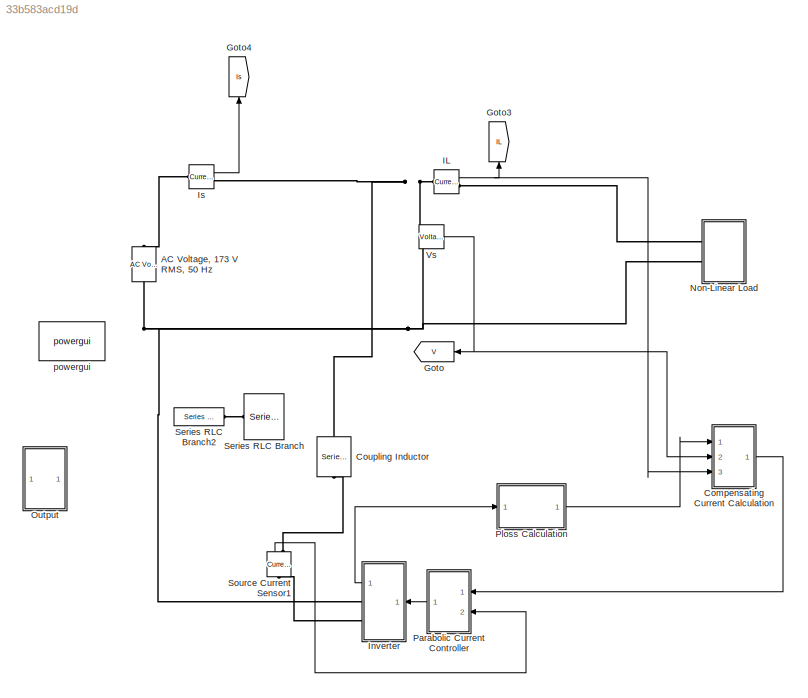
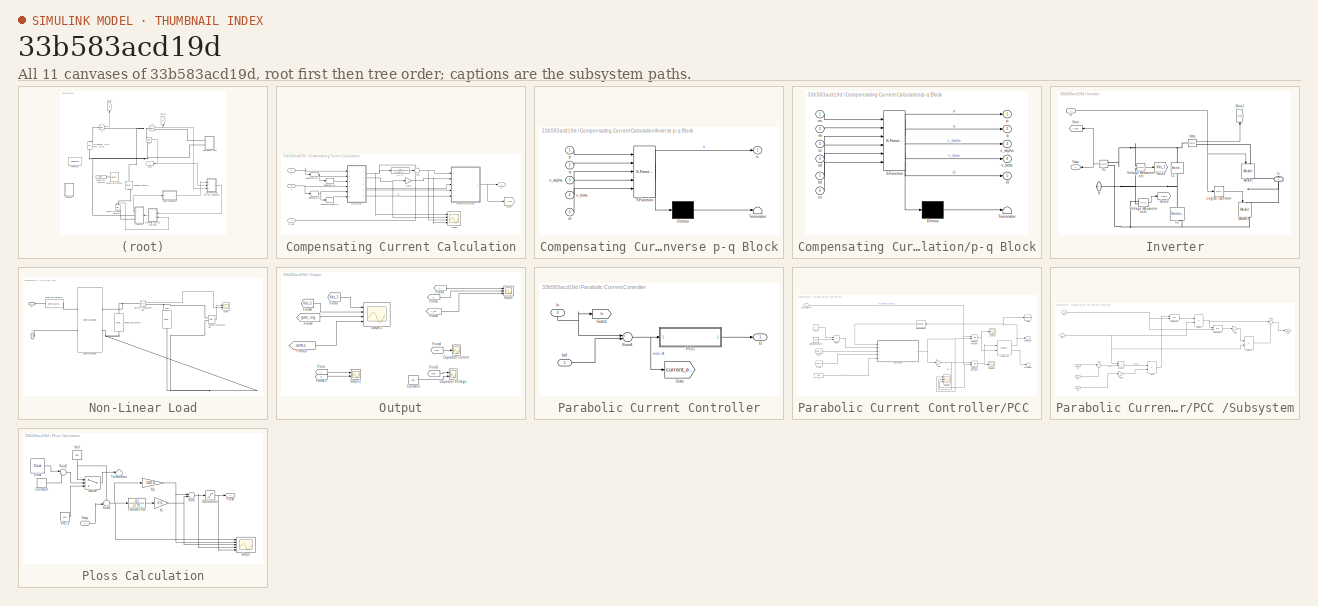
[diagram: thumbnail index - all 11 canvases of the model, root first then tree order]
MODEL slx_33b583acd19d
KIND model
CONFIG AbsTol = auto
CONFIG EnableMultiTasking = on
CONFIG FixedStep = auto
CONFIG MaxStep = auto
CONFIG MinStep = auto
CONFIG RelTol = 1e-3
CONFIG SampleTimeConstraint = Unconstrained
CONFIG Solver = ode45
CONFIG SolverName = ode45
CONFIG StartTime = 0.0
CONFIG StopTime = 7
BLOCK [Reference] AC Voltage, 173 V RMS, 50 Hz  REF=powerlib/Electrical
Sources/AC Voltage Source
  Ports = [0, 0, 0, 0, 0, 1, 1]
  SourceBlock = powerlib/Electrical\nSources/AC Voltage Source
  SourceProductBaseCode = PS
  SourceProductName = Simscape Power Systems
  SourceType = AC Voltage Source
BLOCK [SubSystem] Compensating Current Calculation
  Ports = [3, 1]
  RequestExecContextInheritance = off
  Variant = off
BLOCK [Gain] Compensating Current Calculation/Gain
  Gain = -1
  OutDataTypeStr = Inherit: Inherit via internal rule
  ParamDataTypeStr = Inherit: Inherit via internal rule
  SaturateOnIntegerOverflow = off
BLOCK [Goto] Compensating Current Calculation/Goto
  GotoTag = I_ref
  TagVisibility = global
BLOCK [SubSystem] Compensating Current Calculation/Inverse p-q Block
  ErrorFcn = Stateflow.Translate.translate
  PermitHierarchicalResolution = ExplicitOnly
  Ports = [5, 1]
  RequestExecContextInheritance = off
  SFBlockType = MATLAB Function
  TreatAsAtomicUnit = on
  Variant = off
BLOCK [Demux] Compensating Current Calculation/Inverse p-q Block/ Demux 
  Outputs = 1
  Ports = [1, 1]
BLOCK [S-Function] Compensating Current Calculation/Inverse p-q Block/ SFunction 
  EnableBusSupport = on
  FunctionName = sf_sfun
  PortCounts = [5 2]
  Ports = [5, 2]
  SFcnIsStateOwnerBlock = off
  SFunctionDeploymentMode = off
  Tag = Stateflow S-Function Single_Phase_SAPF_02apr 3
BLOCK [Terminator] Compensating Current Calculation/Inverse p-q Block/ Terminator 
BLOCK [Inport] Compensating Current Calculation/Inverse p-q Block/i0
  IconDisplay = Port number
  Port = 5
BLOCK [Outport] Compensating Current Calculation/Inverse p-q Block/ir
  IconDisplay = Port number
BLOCK [Inport] Compensating Current Calculation/Inverse p-q Block/p
  IconDisplay = Port number
BLOCK [Inport] Compensating Current Calculation/Inverse p-q Block/q
  IconDisplay = Port number
  Port = 2
BLOCK [Inport] Compensating Current Calculation/Inverse p-q Block/v_alpha
  IconDisplay = Port number
  Port = 3
BLOCK [Inport] Compensating Current Calculation/Inverse p-q Block/v_beta
  IconDisplay = Port number
  Port = 4
BLOCK [Outport] Compensating Current Calculation/Ir
  IconDisplay = Port number
BLOCK [TransferFcn] Compensating Current Calculation/L.P.F
  Denominator = [0.0011    0.0187    0.1932    1.0000]
BLOCK [Inport] Compensating Current Calculation/Ploss
  IconDisplay = Port number
BLOCK [Scope] Compensating Current Calculation/Scope
  NumInputPorts = 4
  Ports = [4]
  ScopeSpecificationString = Simulink.scopes.TimeScopeBlockCfg('CurrentConfiguration', extmgr.ConfigurationSet(extmgr.Configuration('Core','General UI',true),extmgr.Configuration('Core','Source UI',true),extmgr.Configuration('Sources','WiredSimulink',true,'DataLoggingVariableName','ScopeData3'),extmgr.Configuration('Visuals','Time Domain',true,'SerializedDisplays',{struct('MinYLimReal','-23441.40163','MaxYLimReal','37885.7590...<+3513ch>
BLOCK [Sum] Compensating Current Calculation/Sum
  IconShape = round
  InputSameDT = off
  Inputs = +-+
  OutDataTypeStr = Inherit: Inherit via internal rule
  Ports = [3, 1]
  SaturateOnIntegerOverflow = off
BLOCK [TransportDelay] Compensating Current Calculation/generate ib
  BufferSize = 10240
  DelayTime = 1/150
  Ports = [1, 1]
BLOCK [TransportDelay] Compensating Current Calculation/generate phase ic
  BufferSize = 10240
  DelayTime = 1/150
  Ports = [1, 1]
BLOCK [TransportDelay] Compensating Current Calculation/generate vb
  BufferSize = 10240
  DelayTime = 1/150
  Ports = [1, 1]
BLOCK [TransportDelay] Compensating Current Calculation/generate vc
  BufferSize = 10240
  DelayTime = 1/150
  Ports = [1, 1]
BLOCK [Inport] Compensating Current Calculation/i
  IconDisplay = Port number
  Port = 3
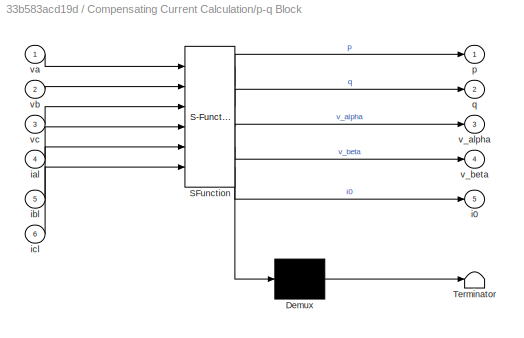
BLOCK [SubSystem] Compensating Current Calculation/p-q Block
  ErrorFcn = Stateflow.Translate.translate
  PermitHierarchicalResolution = ExplicitOnly
  Ports = [6, 5]
  RequestExecContextInheritance = off
  SFBlockType = MATLAB Function
  TreatAsAtomicUnit = on
  Variant = off
BLOCK [Demux] Compensating Current Calculation/p-q Block/ Demux 
  Outputs = 1
  Ports = [1, 1]
BLOCK [S-Function] Compensating Current Calculation/p-q Block/ SFunction 
  EnableBusSupport = on
  FunctionName = sf_sfun
  PortCounts = [6 6]
  Ports = [6, 6]
  SFcnIsStateOwnerBlock = off
  SFunctionDeploymentMode = off
  Tag = Stateflow S-Function Single_Phase_SAPF_02apr 4
BLOCK [Terminator] Compensating Current Calculation/p-q Block/ Terminator 
BLOCK [Outport] Compensating Current Calculation/p-q Block/i0
  IconDisplay = Port number
  Port = 5
BLOCK [Inport] Compensating Current Calculation/p-q Block/ial
  IconDisplay = Port number
  Port = 4
BLOCK [Inport] Compensating Current Calculation/p-q Block/ibl
  IconDisplay = Port number
  Port = 5
BLOCK [Inport] Compensating Current Calculation/p-q Block/icl
  IconDisplay = Port number
  Port = 6
BLOCK [Outport] Compensating Current Calculation/p-q Block/p
  IconDisplay = Port number
BLOCK [Outport] Compensating Current Calculation/p-q Block/q
  IconDisplay = Port number
  Port = 2
BLOCK [Outport] Compensating Current Calculation/p-q Block/v_alpha
  IconDisplay = Port number
  Port = 3
BLOCK [Outport] Compensating Current Calculation/p-q Block/v_beta
  IconDisplay = Port number
  Port = 4
BLOCK [Inport] Compensating Current Calculation/p-q Block/va
  IconDisplay = Port number
BLOCK [Inport] Compensating Current Calculation/p-q Block/vb
  IconDisplay = Port number
  Port = 2
BLOCK [Inport] Compensating Current Calculation/p-q Block/vc
  IconDisplay = Port number
  Port = 3
BLOCK [Inport] Compensating Current Calculation/v
  IconDisplay = Port number
  Port = 2
BLOCK [Reference] Coupling Inductor  REF=powerlib/Elements/Series RLC Branch
  Ports = [0, 0, 0, 0, 0, 1, 1]
  SourceBlock = powerlib/Elements/Series RLC Branch
  SourceProductBaseCode = PS
  SourceProductName = Simscape Power Systems
  SourceType = Series RLC Branch
BLOCK [Goto] Goto
  GotoTag = V
  TagVisibility = global
BLOCK [Goto] Goto3
  GotoTag = IL
  TagVisibility = global
BLOCK [Goto] Goto4
  GotoTag = Is
  TagVisibility = global
BLOCK [Reference] IL  REF=powerlib/Measurements/Current Measurement
  Ports = [0, 1, 0, 0, 0, 1, 1]
  SourceBlock = powerlib/Measurements/Current Measurement
  SourceProductBaseCode = PS
  SourceProductName = Simscape Power Systems
  SourceType = Current Measurement
  UserDataPersistent = on
BLOCK [SubSystem] Inverter
  Ports = [1, 1, 0, 0, 0, 0, 2]
  RequestExecContextInheritance = off
  Variant = off
BLOCK [Reference] Inverter/C1  REF=powerlib/Elements/Series RLC Branch
  Ports = [0, 0, 0, 0, 0, 1, 1]
  SourceBlock = powerlib/Elements/Series RLC Branch
  SourceProductBaseCode = PS
  SourceProductName = Simscape Power Systems
  SourceType = Series RLC Branch
BLOCK [Reference] Inverter/C2  REF=powerlib/Elements/Series RLC Branch
  Ports = [0, 0, 0, 0, 0, 1, 1]
  SourceBlock = powerlib/Elements/Series RLC Branch
  SourceProductBaseCode = PS
  SourceProductName = Simscape Power Systems
  SourceType = Series RLC Branch
BLOCK [Inport] Inverter/G
  IconDisplay = Port number
BLOCK [Goto] Inverter/Goto
  GotoTag = Vcap
  TagVisibility = global
BLOCK [Goto] Inverter/Goto1
  GotoTag = Icap
  TagVisibility = global
BLOCK [Goto] Inverter/Goto2
  GotoTag = Vdc_1
  TagVisibility = global
BLOCK [Goto] Inverter/Goto3
  GotoTag = Vdc_2
  TagVisibility = global
BLOCK [PMIOPort] Inverter/Ic
  Port = 2
  Side = Right
BLOCK [Reference] Inverter/Icap  REF=powerlib/Measurements/Current Measurement
  Ports = [0, 1, 0, 0, 0, 1, 1]
  SourceBlock = powerlib/Measurements/Current Measurement
  SourceProductBaseCode = PS
  SourceProductName = Simscape Power Systems
  SourceType = Current Measurement
  UserDataPersistent = on
BLOCK [Logic] Inverter/Logical Operator
  AllPortsSameDT = off
  Operator = NOT
  OutDataTypeStr = boolean
  Ports = [1, 1]
BLOCK [Reference] Inverter/Mosfet  REF=powerlib/Power
Electronics/Mosfet
  Ports = [1, 0, 0, 0, 0, 1, 1]
  SourceBlock = powerlib/Power\nElectronics/Mosfet
  SourceProductBaseCode = PS
  SourceProductName = Simscape Power Systems
  SourceType = Mosfet
BLOCK [Reference] Inverter/Mosfet1  REF=powerlib/Power
Electronics/Mosfet
  Ports = [1, 0, 0, 0, 0, 1, 1]
  SourceBlock = powerlib/Power\nElectronics/Mosfet
  SourceProductBaseCode = PS
  SourceProductName = Simscape Power Systems
  SourceType = Mosfet
BLOCK [PMIOPort] Inverter/N
  Port = 1
  Side = Right
BLOCK [Reference] Inverter/Vc  REF=powerlib/Measurements/Voltage Measurement
  Ports = [0, 1, 0, 0, 0, 2]
  SourceBlock = powerlib/Measurements/Voltage Measurement
  SourceProductBaseCode = PS
  SourceProductName = Simscape Power Systems
  SourceType = Voltage Measurement
  UserDataPersistent = on
BLOCK [Outport] Inverter/Vcap
  IconDisplay = Port number
BLOCK [Reference] Inverter/Voltage Measurement  REF=powerlib/Measurements/Voltage Measurement
  Ports = [0, 1, 0, 0, 0, 2]
  SourceBlock = powerlib/Measurements/Voltage Measurement
  SourceProductBaseCode = PS
  SourceProductName = Simscape Power Systems
  SourceType = Voltage Measurement
  UserDataPersistent = on
BLOCK [Reference] Inverter/Voltage Measurement1  REF=powerlib/Measurements/Voltage Measurement
  Ports = [0, 1, 0, 0, 0, 2]
  SourceBlock = powerlib/Measurements/Voltage Measurement
  SourceProductBaseCode = PS
  SourceProductName = Simscape Power Systems
  SourceType = Voltage Measurement
  UserDataPersistent = on
BLOCK [Reference] Is  REF=powerlib/Measurements/Current Measurement
  Ports = [0, 1, 0, 0, 0, 1, 1]
  SourceBlock = powerlib/Measurements/Current Measurement
  SourceProductBaseCode = PS
  SourceProductName = Simscape Power Systems
  SourceType = Current Measurement
  UserDataPersistent = on
BLOCK [SubSystem] Non-Linear Load
  Ports = [0, 0, 0, 0, 0, 2]
  RequestExecContextInheritance = off
  Variant = off
BLOCK [Reference] Non-Linear Load/ load  REF=powerlib/Elements/Series RLC Branch
  Ports = [0, 0, 0, 0, 0, 1, 1]
  SourceBlock = powerlib/Elements/Series RLC Branch
  SourceProductBaseCode = PS
  SourceProductName = Simscape Power Systems
  SourceType = Series RLC Branch
BLOCK [Reference] Non-Linear Load/Current Measurement  REF=powerlib/Measurements/Current Measurement
  Ports = [0, 1, 0, 0, 0, 1, 1]
  SourceBlock = powerlib/Measurements/Current Measurement
  SourceProductBaseCode = PS
  SourceProductName = Simscape Power Systems
  SourceType = Current Measurement
  UserDataPersistent = on
BLOCK [PMIOPort] Non-Linear Load/N
  Port = 2
  Side = Left
BLOCK [PMIOPort] Non-Linear Load/P
  Port = 1
  Side = Left
BLOCK [Scope] Non-Linear Load/Scope
  NumInputPorts = 2
  Ports = [2]
  ScopeSpecificationString = Simulink.scopes.TimeScopeBlockCfg('CurrentConfiguration', extmgr.ConfigurationSet(extmgr.Configuration('Core','General UI',true),extmgr.Configuration('Core','Source UI',true),extmgr.Configuration('Sources','WiredSimulink',true,'DataLoggingVariableName','ScopeData1'),extmgr.Configuration('Visuals','Time Domain',true,'SerializedDisplays',{struct('MinYLimReal','225.69846','MaxYLimReal','252.70017','Y...<+2098ch>
BLOCK [Reference] Non-Linear Load/Series RLC Branch  REF=powerlib/Elements/Series RLC Branch
  Ports = [0, 0, 0, 0, 0, 1, 1]
  SourceBlock = powerlib/Elements/Series RLC Branch
  SourceProductBaseCode = PS
  SourceProductName = Simscape Power Systems
  SourceType = Series RLC Branch
BLOCK [Reference] Non-Linear Load/Series RLC Branch1  REF=powerlib/Elements/Series RLC Branch
  Ports = [0, 0, 0, 0, 0, 1, 1]
  SourceBlock = powerlib/Elements/Series RLC Branch
  SourceProductBaseCode = PS
  SourceProductName = Simscape Power Systems
  SourceType = Series RLC Branch
BLOCK [Reference] Non-Linear Load/Universal Bridge  REF=powerlib/Power
Electronics/Universal Bridge
  Ports = [0, 0, 0, 0, 0, 2, 2]
  SourceBlock = powerlib/Power\nElectronics/Universal Bridge
  SourceProductBaseCode = PS
  SourceProductName = Simscape Power Systems
  SourceType = Universal Bridge
BLOCK [Reference] Non-Linear Load/Voltage Measurement  REF=powerlib/Measurements/Voltage Measurement
  Ports = [0, 1, 0, 0, 0, 2]
  SourceBlock = powerlib/Measurements/Voltage Measurement
  SourceProductBaseCode = PS
  SourceProductName = Simscape Power Systems
  SourceType = Voltage Measurement
  UserDataPersistent = on
BLOCK [SubSystem] Output
  Ports = []
  RequestExecContextInheritance = off
  Variant = off
BLOCK [Scope] Output/Capacitor Current
  NumInputPorts = 1
  Ports = [1]
  ScopeSpecificationString = Simulink.scopes.TimeScopeBlockCfg('CurrentConfiguration', extmgr.ConfigurationSet(extmgr.Configuration('Core','General UI',true),extmgr.Configuration('Core','Source UI',true),extmgr.Configuration('Sources','WiredSimulink',true,'DataLoggingVariableName','ScopeData2','DataLoggingMaxPoints','50000'),extmgr.Configuration('Visuals','Time Domain',true,'SerializedDisplays',{struct('MinYLimReal','-259.567...<+1553ch>
BLOCK [Scope] Output/Capacitor Voltage
  NumInputPorts = 2
  Ports = [2]
  ScopeSpecificationString = Simulink.scopes.TimeScopeBlockCfg('CurrentConfiguration', extmgr.ConfigurationSet(extmgr.Configuration('Core','General UI',true,'DisplayFullSourceName',true),extmgr.Configuration('Core','Source UI',true),extmgr.Configuration('Sources','WiredSimulink',true,'DataLoggingVariableName','ScopeData1','DataLoggingMaxPoints','50000'),extmgr.Configuration('Visuals','Time Domain',true,'SerializedDisplays',{s...<+1591ch>
BLOCK [Constant] Output/Constant
  Value = 800
BLOCK [From] Output/From
  GotoTag = V
  TagVisibility = global
BLOCK [From] Output/From1
  GotoTag = IL
  TagVisibility = global
BLOCK [From] Output/From10
  GotoTag = current_error
  TagVisibility = global
BLOCK [From] Output/From11
  GotoTag = Is
  TagVisibility = global
BLOCK [From] Output/From3
  GotoTag = Vcap
  TagVisibility = global
BLOCK [From] Output/From4
  GotoTag = Icap
  TagVisibility = global
BLOCK [From] Output/From5
  GotoTag = Ic
  TagVisibility = global
BLOCK [From] Output/From6
  GotoTag = I_ref
  TagVisibility = global
BLOCK [From] Output/From7
  GotoTag = Vdc_1
  TagVisibility = global
BLOCK [From] Output/From8
  GotoTag = Vdc_2
  TagVisibility = global
BLOCK [From] Output/From9
  GotoTag = gate_sig
  TagVisibility = global
BLOCK [Scope] Output/Scope
  NumInputPorts = 3
  Ports = [3]
  ScopeSpecificationString = Simulink.scopes.TimeScopeBlockCfg('CurrentConfiguration', extmgr.ConfigurationSet(extmgr.Configuration('Core','General UI',true),extmgr.Configuration('Core','Source UI',true),extmgr.Configuration('Sources','WiredSimulink',true,'DataLoggingVariableName','ScopeData1'),extmgr.Configuration('Visuals','Time Domain',true,'SerializedDisplays',{struct('MinYLimReal','-15.12686','MaxYLimReal','15.12686','YL...<+2740ch>
BLOCK [Scope] Output/Scope1
  NumInputPorts = 4
  Ports = [4]
  ScopeSpecificationString = Simulink.scopes.TimeScopeBlockCfg('CurrentConfiguration', extmgr.ConfigurationSet(extmgr.Configuration('Core','General UI',true),extmgr.Configuration('Core','Source UI',true),extmgr.Configuration('Sources','WiredSimulink',true,'DataLoggingVariableName','ScopeData1'),extmgr.Configuration('Visuals','Time Domain',true,'SerializedDisplays',{struct('MinYLimReal','258.18304','MaxYLimReal','433.59973','Y...<+3533ch>
BLOCK [Scope] Output/Scope2
  NumInputPorts = 2
  Ports = [2]
  ScopeSpecificationString = Simulink.scopes.TimeScopeBlockCfg('CurrentConfiguration', extmgr.ConfigurationSet(extmgr.Configuration('Core','General UI',true,'DisplayFullSourceName',true),extmgr.Configuration('Core','Source UI',true),extmgr.Configuration('Sources','WiredSimulink',true,'DataLoggingVariableName','ScopeData_PCC','DataLogging',true,'DataLoggingSaveFormat','StructureWithTime'),extmgr.Configuration('Visuals','Time D...<+2144ch>
BLOCK [SubSystem] Parabolic Current Controller
  Ports = [2, 1]
  RequestExecContextInheritance = off
  Variant = off
BLOCK [Outport] Parabolic Current Controller/G
  IconDisplay = Port number
BLOCK [Goto] Parabolic Current Controller/Goto
  GotoTag = current_error
  TagVisibility = global
BLOCK [Goto] Parabolic Current Controller/Goto1
  GotoTag = Ic
  TagVisibility = global
BLOCK [Inport] Parabolic Current Controller/Ic
  IconDisplay = Port number
  Port = 2
BLOCK [Inport] Parabolic Current Controller/Iref
  IconDisplay = Port number
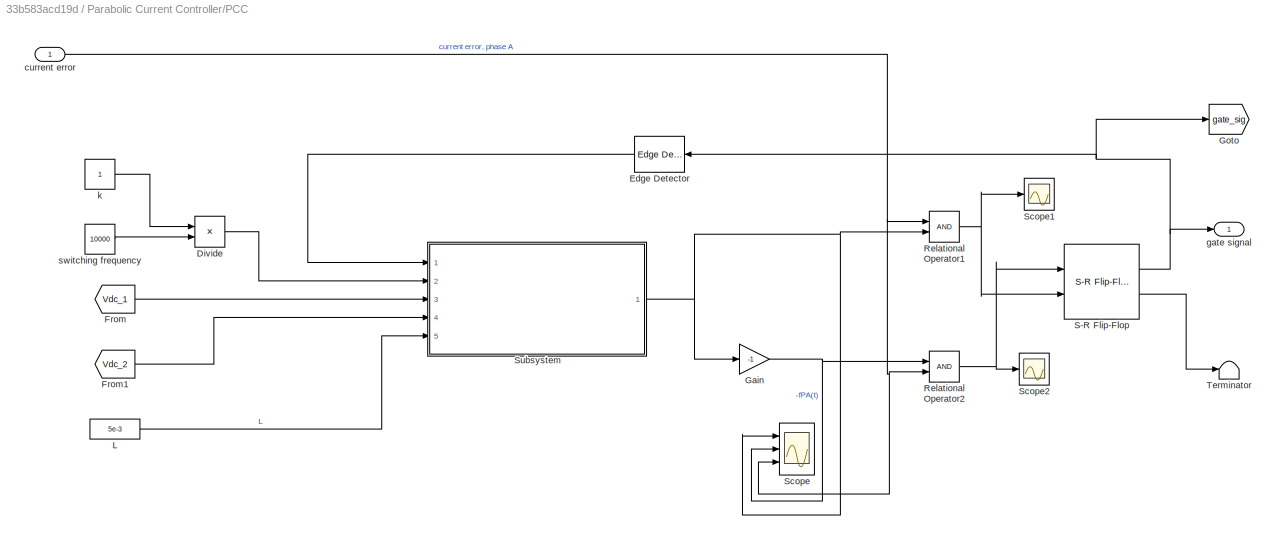
BLOCK [SubSystem] Parabolic Current Controller/PCC 
  Ports = [1, 1]
  RequestExecContextInheritance = off
  Variant = off
BLOCK [Product] Parabolic Current Controller/PCC /Divide
  InputSameDT = off
  Inputs = */
  OutDataTypeStr = Inherit: Inherit via internal rule
  Ports = [2, 1]
  RndMeth = Floor
  SaturateOnIntegerOverflow = off
BLOCK [Reference] Parabolic Current Controller/PCC /Edge Detector  REF=powerlib_meascontrol/Logic/Edge Detector
  Ports = [1, 1]
  SourceBlock = powerlib_meascontrol/Logic/Edge Detector
  SourceProductBaseCode = PS
  SourceProductName = Simscape Power Systems
  SourceType = Edge Detector
BLOCK [From] Parabolic Current Controller/PCC /From
  GotoTag = Vdc_1
  TagVisibility = global
BLOCK [From] Parabolic Current Controller/PCC /From1
  GotoTag = Vdc_2
  TagVisibility = global
BLOCK [Gain] Parabolic Current Controller/PCC /Gain
  Gain = -1
  OutDataTypeStr = Inherit: Inherit via internal rule
  ParamDataTypeStr = Inherit: Inherit via internal rule
  SaturateOnIntegerOverflow = off
BLOCK [Goto] Parabolic Current Controller/PCC /Goto
  GotoTag = gate_sig
  TagVisibility = global
BLOCK [Constant] Parabolic Current Controller/PCC /L
  Value = 5e-3
BLOCK [RelationalOperator] Parabolic Current Controller/PCC /Relational Operator1
  InputSameDT = off
  OutDataTypeStr = boolean
  Ports = [2, 1]
  RndMeth = Simplest
  ZeroCross = off
BLOCK [RelationalOperator] Parabolic Current Controller/PCC /Relational Operator2
  InputSameDT = off
  OutDataTypeStr = boolean
  Ports = [2, 1]
  RndMeth = Simplest
  ZeroCross = off
BLOCK [Reference] Parabolic Current Controller/PCC /S-R Flip-Flop  REF=simulink_extras/Flip Flops/S-R
Flip-Flop
  Ports = [2, 2]
  SourceBlock = simulink_extras/Flip Flops/S-R\nFlip-Flop
  SourceProductBaseCode = SL
  SourceProductName = Simulink
  SourceType = SRFlipFlop
BLOCK [Scope] Parabolic Current Controller/PCC /Scope
  NumInputPorts = 3
  Ports = [3]
  ScopeSpecificationString = Simulink.scopes.TimeScopeBlockCfg('CurrentConfiguration', extmgr.ConfigurationSet(extmgr.Configuration('Core','General UI',true),extmgr.Configuration('Core','Source UI',true),extmgr.Configuration('Sources','WiredSimulink',true,'DataLoggingVariableName','ScopeData2'),extmgr.Configuration('Visuals','Time Domain',true,'SerializedDisplays',{struct('MinYLimReal','-2266484476.35167','MaxYLimReal','22664...<+1661ch>
BLOCK [Scope] Parabolic Current Controller/PCC /Scope1
  NumInputPorts = 1
  Ports = [1]
  ScopeSpecificationString = Simulink.scopes.TimeScopeBlockCfg('CurrentConfiguration', extmgr.ConfigurationSet(extmgr.Configuration('Core','General UI',true),extmgr.Configuration('Core','Source UI',true),extmgr.Configuration('Sources','WiredSimulink',true,'DataLoggingVariableName','ScopeData2'),extmgr.Configuration('Visuals','Time Domain',true,'SerializedDisplays',{struct('MinYLimReal','-0.125','MaxYLimReal','1.125','YLabelRe...<+1367ch>
BLOCK [Scope] Parabolic Current Controller/PCC /Scope2
  NumInputPorts = 1
  Ports = [1]
  ScopeSpecificationString = Simulink.scopes.TimeScopeBlockCfg('CurrentConfiguration', extmgr.ConfigurationSet(extmgr.Configuration('Core','General UI',true),extmgr.Configuration('Core','Source UI',true),extmgr.Configuration('Sources','WiredSimulink',true,'DataLoggingVariableName','ScopeData3'),extmgr.Configuration('Visuals','Time Domain',true,'SerializedDisplays',{struct('MinYLimReal','-0.125','MaxYLimReal','1.125','YLabelRe...<+1367ch>
BLOCK [SubSystem] Parabolic Current Controller/PCC /Subsystem
  Ports = [5, 1]
  RequestExecContextInheritance = off
  Variant = off
BLOCK [Product] Parabolic Current Controller/PCC /Subsystem/Divide
  InputSameDT = off
  Inputs = */
  OutDataTypeStr = Inherit: Inherit via internal rule
  Ports = [2, 1]
  RndMeth = Floor
  SaturateOnIntegerOverflow = off
BLOCK [Product] Parabolic Current Controller/PCC /Subsystem/Divide2
  InputSameDT = off
  Inputs = */
  OutDataTypeStr = Inherit: Inherit via internal rule
  Ports = [2, 1]
  RndMeth = Floor
  SaturateOnIntegerOverflow = off
BLOCK [Product] Parabolic Current Controller/PCC /Subsystem/Divide3
  InputSameDT = off
  Inputs = */
  OutDataTypeStr = Inherit: Inherit via internal rule
  Ports = [2, 1]
  RndMeth = Floor
  SaturateOnIntegerOverflow = off
BLOCK [Gain] Parabolic Current Controller/PCC /Subsystem/Gain
  Gain = 2
  OutDataTypeStr = Inherit: Inherit via internal rule
  ParamDataTypeStr = Inherit: Inherit via internal rule
  SaturateOnIntegerOverflow = off
BLOCK [Gain] Parabolic Current Controller/PCC /Subsystem/Gain1
  Gain = 2
  OutDataTypeStr = Inherit: Inherit via internal rule
  ParamDataTypeStr = Inherit: Inherit via internal rule
  SaturateOnIntegerOverflow = off
BLOCK [Inport] Parabolic Current Controller/PCC /Subsystem/In1
  IconDisplay = Port number
BLOCK [Inport] Parabolic Current Controller/PCC /Subsystem/In2
  IconDisplay = Port number
  Port = 2
BLOCK [Inport] Parabolic Current Controller/PCC /Subsystem/In3
  IconDisplay = Port number
  Port = 3
BLOCK [Inport] Parabolic Current Controller/PCC /Subsystem/In4
  IconDisplay = Port number
  Port = 4
BLOCK [Inport] Parabolic Current Controller/PCC /Subsystem/In5
  IconDisplay = Port number
  Port = 5
BLOCK [Integrator] Parabolic Current Controller/PCC /Subsystem/Integrator
  ExternalReset = either
  Ports = [2, 1]
BLOCK [Integrator] Parabolic Current Controller/PCC /Subsystem/Integrator1
  ExternalReset = either
  Ports = [2, 1]
BLOCK [Outport] Parabolic Current Controller/PCC /Subsystem/Out1
  IconDisplay = Port number
BLOCK [Product] Parabolic Current Controller/PCC /Subsystem/Product
  InputSameDT = off
  OutDataTypeStr = Inherit: Inherit via internal rule
  Ports = [2, 1]
  RndMeth = Floor
  SaturateOnIntegerOverflow = off
BLOCK [Sum] Parabolic Current Controller/PCC /Subsystem/Sum
  IconShape = round
  InputSameDT = off
  Inputs = |+-
  OutDataTypeStr = Inherit: Inherit via internal rule
  Ports = [2, 1]
  SaturateOnIntegerOverflow = off
BLOCK [Sum] Parabolic Current Controller/PCC /Subsystem/Sum1
  IconShape = round
  InputSameDT = off
  Inputs = |+-
  OutDataTypeStr = Inherit: Inherit via internal rule
  Ports = [2, 1]
  SaturateOnIntegerOverflow = off
BLOCK [Terminator] Parabolic Current Controller/PCC /Terminator
BLOCK [Inport] Parabolic Current Controller/PCC /current error
  IconDisplay = Port number
BLOCK [Outport] Parabolic Current Controller/PCC /gate signal
  IconDisplay = Port number
BLOCK [Constant] Parabolic Current Controller/PCC /k 
BLOCK [Constant] Parabolic Current Controller/PCC /switching frequency
  Value = 10000
BLOCK [Sum] Parabolic Current Controller/Sum4
  InputSameDT = off
  Inputs = +-
  OutDataTypeStr = Inherit: Inherit via internal rule
  Ports = [2, 1]
  SaturateOnIntegerOverflow = off
BLOCK [SubSystem] Ploss Calculation
  Ports = [1, 1]
  RequestExecContextInheritance = off
  Variant = off
BLOCK [Clock] Ploss Calculation/Clock
  DisplayTime = on
BLOCK [Constant] Ploss Calculation/Constant
BLOCK [Gain] Ploss Calculation/Ki 
  Gain = 0.6
  OutDataTypeStr = Inherit: Inherit via internal rule
  ParamDataTypeStr = Inherit: Inherit via internal rule
  SaturateOnIntegerOverflow = off
BLOCK [Gain] Ploss Calculation/Kp 
  Gain = 102.8
  OutDataTypeStr = Inherit: Inherit via internal rule
  ParamDataTypeStr = Inherit: Inherit via internal rule
  SaturateOnIntegerOverflow = off
BLOCK [Outport] Ploss Calculation/Ploss
  IconDisplay = Port number
BLOCK [Saturate] Ploss Calculation/Saturation
  InputPortMap = u0
  LinearizeAsGain = off
  LowerLimit = -1e-5
  Ports = [1, 1]
  UpperLimit = 1e5
  ZeroCross = off
BLOCK [Scope] Ploss Calculation/Scope
  NumInputPorts = 5
  Ports = [5]
  ScopeSpecificationString = Simulink.scopes.TimeScopeBlockCfg('CurrentConfiguration', extmgr.ConfigurationSet(extmgr.Configuration('Core','General UI',true),extmgr.Configuration('Core','Source UI',true),extmgr.Configuration('Sources','WiredSimulink',true,'DataLoggingVariableName','ScopeData2'),extmgr.Configuration('Visuals','Time Domain',true,'SerializedDisplays',{struct('MinYLimReal','-279.59129','MaxYLimReal','918.01199','...<+4811ch>
BLOCK [Sum] Ploss Calculation/Sum
  IconShape = round
  InputSameDT = off
  Inputs = |++
  OutDataTypeStr = Inherit: Inherit via internal rule
  Ports = [2, 1]
  SaturateOnIntegerOverflow = off
BLOCK [Sum] Ploss Calculation/Sum1
  IconShape = round
  InputSameDT = off
  Inputs = +-|
  OutDataTypeStr = Inherit: Inherit via internal rule
  Ports = [2, 1]
  SaturateOnIntegerOverflow = off
BLOCK [Sum] Ploss Calculation/Sum2
  IconShape = round
  InputSameDT = off
  Inputs = |+-
  OutDataTypeStr = Inherit: Inherit via internal rule
  Ports = [2, 1]
  SaturateOnIntegerOverflow = off
BLOCK [Switch] Ploss Calculation/Switch
  Criteria = u2 > Threshold
  InputSameDT = off
  SaturateOnIntegerOverflow = off
BLOCK [Terminator] Ploss Calculation/Terminator
BLOCK [TransferFcn] Ploss Calculation/Transfer Fcn
  Denominator = [1 0]
BLOCK [Inport] Ploss Calculation/Vcap
  IconDisplay = Port number
BLOCK [Constant] Ploss Calculation/Vref
  Value = 800
BLOCK [Constant] Ploss Calculation/Vref,2
  Value = 500
BLOCK [Reference] Series RLC Branch  REF=powerlib/Elements/Series RLC Branch
  Ports = [0, 0, 0, 0, 0, 1, 1]
  SourceBlock = powerlib/Elements/Series RLC Branch
  SourceProductBaseCode = PS
  SourceProductName = Simscape Power Systems
  SourceType = Series RLC Branch
BLOCK [Reference] Series RLC Branch2  REF=powerlib/Elements/Series RLC Branch
  Ports = [0, 0, 0, 0, 0, 1, 1]
  SourceBlock = powerlib/Elements/Series RLC Branch
  SourceProductBaseCode = PS
  SourceProductName = Simscape Power Systems
  SourceType = Series RLC Branch
BLOCK [Reference] Source Current Sensor1  REF=powerlib/Measurements/Current Measurement
  Ports = [0, 1, 0, 0, 0, 1, 1]
  SourceBlock = powerlib/Measurements/Current Measurement
  SourceProductBaseCode = PS
  SourceProductName = Simscape Power Systems
  SourceType = Current Measurement
  UserDataPersistent = on
BLOCK [Reference] Vs  REF=powerlib/Measurements/Voltage Measurement
  Ports = [0, 1, 0, 0, 0, 2]
  SourceBlock = powerlib/Measurements/Voltage Measurement
  SourceProductBaseCode = PS
  SourceProductName = Simscape Power Systems
  SourceType = Voltage Measurement
  UserDataPersistent = on
BLOCK [Reference] powergui  REF=powerlib/powergui
  Ports = []
  Priority = 1
  SourceBlock = powerlib/powergui
  SourceProductBaseCode = PS
  SourceProductName = Simscape Power Systems
  SourceType = PSB option menu block
NET Compensating Current Calculation/Gain:1 -> Compensating Current Calculation/Inverse p-q Block:2, Compensating Current Calculation/Scope:4
NET Compensating Current Calculation/Inverse p-q Block:1 -> Compensating Current Calculation/Goto:1, Compensating Current Calculation/Ir:1
LINE Compensating Current Calculation/L.P.F:1 -> Compensating Current Calculation/Sum:2
LINE Compensating Current Calculation/Ploss:1 -> Compensating Current Calculation/Sum:3
NET Compensating Current Calculation/Sum:1 -> Compensating Current Calculation/Inverse p-q Block:1, Compensating Current Calculation/Scope:3
NET Compensating Current Calculation/generate ib:1 -> Compensating Current Calculation/generate phase ic:1, Compensating Current Calculation/p-q Block:5
LINE Compensating Current Calculation/generate phase ic:1 -> Compensating Current Calculation/p-q Block:6
NET Compensating Current Calculation/generate vb:1 -> Compensating Current Calculation/generate vc:1, Compensating Current Calculation/p-q Block:2
LINE Compensating Current Calculation/generate vc:1 -> Compensating Current Calculation/p-q Block:3
NET Compensating Current Calculation/i:1 -> Compensating Current Calculation/generate ib:1, Compensating Current Calculation/p-q Block:4
NET Compensating Current Calculation/p-q Block:1 -> Compensating Current Calculation/L.P.F:1, Compensating Current Calculation/Scope:1, Compensating Current Calculation/Sum:1
NET Compensating Current Calculation/p-q Block:2 -> Compensating Current Calculation/Gain:1, Compensating Current Calculation/Scope:2
LINE Compensating Current Calculation/p-q Block:3 -> Compensating Current Calculation/Inverse p-q Block:3
LINE Compensating Current Calculation/p-q Block:4 -> Compensating Current Calculation/Inverse p-q Block:4
LINE Compensating Current Calculation/p-q Block:5 -> Compensating Current Calculation/Inverse p-q Block:5
NET Compensating Current Calculation/v:1 -> Compensating Current Calculation/generate vb:1, Compensating Current Calculation/p-q Block:1
LINE Compensating Current Calculation:1 -> Parabolic Current Controller:1
NET IL:1 -> Compensating Current Calculation:3, Goto3:1
NET Inverter/G:1 -> Inverter/Logical Operator:1, Inverter/Mosfet:1
LINE Inverter/Icap:1 -> Inverter/Goto1:1
LINE Inverter/Logical Operator:1 -> Inverter/Mosfet1:1
NET Inverter/Vc:1 -> Inverter/Goto:1, Inverter/Vcap:1
LINE Inverter/Voltage Measurement1:1 -> Inverter/Goto3:1
LINE Inverter/Voltage Measurement:1 -> Inverter/Goto2:1
LINE Inverter:1 -> Ploss Calculation:1
LINE Is:1 -> Goto4:1
LINE Non-Linear Load/Current Measurement:1 -> Non-Linear Load/Scope:2
LINE Non-Linear Load/Voltage Measurement:1 -> Non-Linear Load/Scope:1
LINE Output/Constant:1 -> Output/Capacitor Voltage:2
LINE Output/From10:1 -> Output/Scope1:4
LINE Output/From11:1 -> Output/Scope2:2
LINE Output/From1:1 -> Output/Scope:1
LINE Output/From3:1 -> Output/Capacitor Voltage:1
LINE Output/From4:1 -> Output/Capacitor Current:1
LINE Output/From5:1 -> Output/Scope:2
LINE Output/From6:1 -> Output/Scope:3
LINE Output/From7:1 -> Output/Scope1:1
LINE Output/From8:1 -> Output/Scope1:2
LINE Output/From9:1 -> Output/Scope1:3
LINE Output/From:1 -> Output/Scope2:1
NET Parabolic Current Controller/Ic:1 -> Parabolic Current Controller/Goto1:1, Parabolic Current Controller/Sum4:1
LINE Parabolic Current Controller/Iref:1 -> Parabolic Current Controller/Sum4:2
LINE Parabolic Current Controller/PCC /Divide:1 -> Parabolic Current Controller/PCC /Subsystem:2
LINE Parabolic Current Controller/PCC /Edge Detector:1 -> Parabolic Current Controller/PCC /Subsystem:1
LINE Parabolic Current Controller/PCC /From1:1 -> Parabolic Current Controller/PCC /Subsystem:4
LINE Parabolic Current Controller/PCC /From:1 -> Parabolic Current Controller/PCC /Subsystem:3
NET Parabolic Current Controller/PCC /Gain:1 -> Parabolic Current Controller/PCC /Relational Operator2:1, Parabolic Current Controller/PCC /Scope:2
LINE Parabolic Current Controller/PCC /L:1 -> Parabolic Current Controller/PCC /Subsystem:5
NET Parabolic Current Controller/PCC /Relational Operator1:1 -> Parabolic Current Controller/PCC /S-R Flip-Flop:2, Parabolic Current Controller/PCC /Scope1:1
NET Parabolic Current Controller/PCC /Relational Operator2:1 -> Parabolic Current Controller/PCC /S-R Flip-Flop:1, Parabolic Current Controller/PCC /Scope2:1
NET Parabolic Current Controller/PCC /S-R Flip-Flop:1 -> Parabolic Current Controller/PCC /Edge Detector:1, Parabolic Current Controller/PCC /Goto:1, Parabolic Current Controller/PCC /gate signal:1
LINE Parabolic Current Controller/PCC /S-R Flip-Flop:2 -> Parabolic Current Controller/PCC /Terminator:1
NET Parabolic Current Controller/PCC /Subsystem/Divide2:1 -> Parabolic Current Controller/PCC /Subsystem/Integrator1:1, Parabolic Current Controller/PCC /Subsystem/Sum1:1
LINE Parabolic Current Controller/PCC /Subsystem/Divide3:1 -> Parabolic Current Controller/PCC /Subsystem/Sum1:2
LINE Parabolic Current Controller/PCC /Subsystem/Divide:1 -> Parabolic Current Controller/PCC /Subsystem/Integrator:1
LINE Parabolic Current Controller/PCC /Subsystem/Gain1:1 -> Parabolic Current Controller/PCC /Subsystem/Divide:2
LINE Parabolic Current Controller/PCC /Subsystem/Gain:1 -> Parabolic Current Controller/PCC /Subsystem/Divide3:1
NET Parabolic Current Controller/PCC /Subsystem/In1:1 -> Parabolic Current Controller/PCC /Subsystem/Integrator1:2, Parabolic Current Controller/PCC /Subsystem/Integrator:2
NET Parabolic Current Controller/PCC /Subsystem/In2:1 -> Parabolic Current Controller/PCC /Subsystem/Divide2:2, Parabolic Current Controller/PCC /Subsystem/Divide3:2, Parabolic Current Controller/PCC /Subsystem/Product:1
LINE Parabolic Current Controller/PCC /Subsystem/In3:1 -> Parabolic Current Controller/PCC /Subsystem/Sum:1
LINE Parabolic Current Controller/PCC /Subsystem/In4:1 -> Parabolic Current Controller/PCC /Subsystem/Sum:2
LINE Parabolic Current Controller/PCC /Subsystem/In5:1 -> Parabolic Current Controller/PCC /Subsystem/Gain1:1
LINE Parabolic Current Controller/PCC /Subsystem/Integrator1:1 -> Parabolic Current Controller/PCC /Subsystem/Gain:1
LINE Parabolic Current Controller/PCC /Subsystem/Integrator:1 -> Parabolic Current Controller/PCC /Subsystem/Divide2:1
LINE Parabolic Current Controller/PCC /Subsystem/Product:1 -> Parabolic Current Controller/PCC /Subsystem/Divide:1
LINE Parabolic Current Controller/PCC /Subsystem/Sum1:1 -> Parabolic Current Controller/PCC /Subsystem/Out1:1
LINE Parabolic Current Controller/PCC /Subsystem/Sum:1 -> Parabolic Current Controller/PCC /Subsystem/Product:2
NET Parabolic Current Controller/PCC /Subsystem:1 -> Parabolic Current Controller/PCC /Gain:1, Parabolic Current Controller/PCC /Relational Operator1:2, Parabolic Current Controller/PCC /Scope:1
NET Parabolic Current Controller/PCC /current error:1 -> Parabolic Current Controller/PCC /Relational Operator1:1, Parabolic Current Controller/PCC /Relational Operator2:2, Parabolic Current Controller/PCC /Scope:3
LINE Parabolic Current Controller/PCC /k :1 -> Parabolic Current Controller/PCC /Divide:1
LINE Parabolic Current Controller/PCC /switching frequency:1 -> Parabolic Current Controller/PCC /Divide:2
LINE Parabolic Current Controller/PCC :1 -> Parabolic Current Controller/G:1
NET Parabolic Current Controller/Sum4:1 -> Parabolic Current Controller/Goto:1, Parabolic Current Controller/PCC :1
LINE Parabolic Current Controller:1 -> Inverter:1
LINE Ploss Calculation/Clock:1 -> Ploss Calculation/Sum2:1
LINE Ploss Calculation/Constant:1 -> Ploss Calculation/Sum2:2
NET Ploss Calculation/Ki :1 -> Ploss Calculation/Scope:3, Ploss Calculation/Sum:2
NET Ploss Calculation/Kp :1 -> Ploss Calculation/Scope:2, Ploss Calculation/Sum:1
NET Ploss Calculation/Saturation:1 -> Ploss Calculation/Ploss:1, Ploss Calculation/Scope:5
NET Ploss Calculation/Sum1:1 -> Ploss Calculation/Kp :1, Ploss Calculation/Scope:1, Ploss Calculation/Transfer Fcn:1
LINE Ploss Calculation/Sum2:1 -> Ploss Calculation/Switch:2
NET Ploss Calculation/Sum:1 -> Ploss Calculation/Saturation:1, Ploss Calculation/Scope:4
LINE Ploss Calculation/Switch:1 -> Ploss Calculation/Terminator:1
LINE Ploss Calculation/Transfer Fcn:1 -> Ploss Calculation/Ki :1
LINE Ploss Calculation/Vcap:1 -> Ploss Calculation/Sum1:2
LINE Ploss Calculation/Vref,2:1 -> Ploss Calculation/Switch:3
NET Ploss Calculation/Vref:1 -> Ploss Calculation/Sum1:1, Ploss Calculation/Switch:1
LINE Ploss Calculation:1 -> Compensating Current Calculation:1
LINE Source Current Sensor1:1 -> Parabolic Current Controller:2
NET Vs:1 -> Compensating Current Calculation:2, Goto:1
PNET net1: AC Voltage, 173 V RMS, 50 Hz:LConn1 -- Inverter:RConn1 -- Non-Linear Load:LConn2 -- Vs:LConn2
PLINE AC Voltage, 173 V RMS, 50 Hz:RConn1 -- Is:LConn1
PNET net2: Coupling Inductor:LConn1 -- IL:LConn1 -- Is:RConn1 -- Vs:LConn1
PLINE Coupling Inductor:RConn1 -- Source Current Sensor1:RConn1
PLINE IL:RConn1 -- Non-Linear Load:LConn1
PNET net3: Inverter/C1:LConn1 -- Inverter/Icap:LConn1 -- Inverter/Vc:LConn1 -- Inverter/Voltage Measurement:LConn1
PNET net4: Inverter/C1:RConn1 -- Inverter/C2:LConn1 -- Inverter/N:RConn1 -- Inverter/Voltage Measurement1:LConn2 -- Inverter/Voltage Measurement:LConn2
PNET net5: Inverter/C2:RConn1 -- Inverter/Mosfet1:RConn1 -- Inverter/Vc:LConn2 -- Inverter/Voltage Measurement1:LConn1
PNET net6: Inverter/Ic:RConn1 -- Inverter/Mosfet1:LConn1 -- Inverter/Mosfet:RConn1
PLINE Inverter/Icap:RConn1 -- Inverter/Mosfet:LConn1
PLINE Inverter:RConn2 -- Source Current Sensor1:LConn1
PNET net7: Non-Linear Load/ load:LConn1 -- Non-Linear Load/Current Measurement:RConn1 -- Non-Linear Load/Voltage Measurement:LConn1
PNET net8: Non-Linear Load/ load:RConn1 -- Non-Linear Load/Series RLC Branch:RConn1 -- Non-Linear Load/Universal Bridge:RConn2 -- Non-Linear Load/Voltage Measurement:LConn2
PNET net9: Non-Linear Load/Current Measurement:LConn1 -- Non-Linear Load/Series RLC Branch:LConn1 -- Non-Linear Load/Universal Bridge:RConn1
PLINE Non-Linear Load/N:RConn1 -- Non-Linear Load/Universal Bridge:LConn2
PLINE Non-Linear Load/P:RConn1 -- Non-Linear Load/Series RLC Branch1:LConn1
PLINE Non-Linear Load/Series RLC Branch1:RConn1 -- Non-Linear Load/Universal Bridge:LConn1
PLINE Series RLC Branch2:RConn1 -- Series RLC Branch:RConn1
note: NET lines group one-source signal fan-out (src -> all destinations, sorted); 1:1 wires keep LINE; PNET lines group multi-terminal physical nets as a canonical sorted terminal list (undirected conserving connections); 2-terminal nets keep the pairwise PLINE form
CHART Compensating
Current Calculation/Inverse p-q Block states=1 transitions=1
  STATE_LABEL 'eML_blk_kernel()'
  STATE_LABEL 'SCRIPT:\nfunction ir = fcn(p,q,v_alpha,v_beta,i0)\n%#codegen\nx= v_alpha.^2+v_beta.^2;\nic_alpha=(v_alpha.*p+v_beta.*q)/x;\nic_beta=(v_beta.*p-v_alpha.*q)/x;\nir=sqrt(2/3)*(i0/sqrt(2)+ic_alpha);\n%ir= sqrt(2/3)*ic_alpha;'
CHART Compensating
Current Calculation/p-q Block states=1 transitions=1
  STATE_LABEL 'eML_blk_kernel()'
  STATE_LABEL 'SCRIPT:\nfunction [p,q,v_alpha,v_beta,i0]= fcn(va,vb,vc,ial,ibl,icl)\n%#codegen\nv_alpha=(va-(vb/2)-(vc/2))*sqrt(2/3);\nv_beta=(vb-vc)/sqrt(2);\ni0=(ial+ibl+icl)/sqrt(3);\nil_alpha=(ial-(ibl/2)-(icl/2))*sqrt(2/3);\nil_beta=(ibl-icl)/sqrt(2);\np=v_alpha.*il_alpha+v_beta.*il_beta;\nq=v_beta.*il_alpha-v_alpha.*il_beta;'
